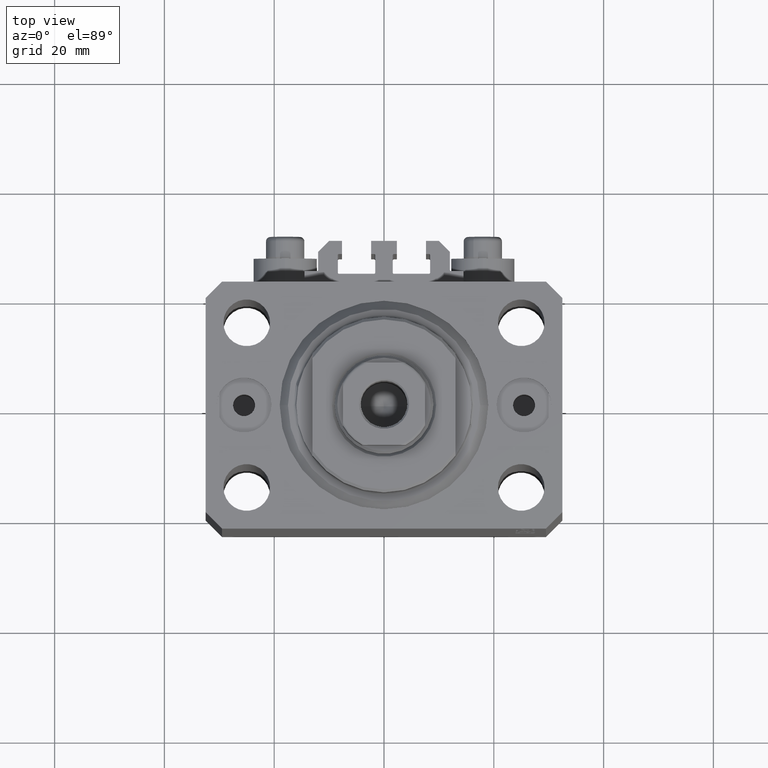
[diagram: clean part render]
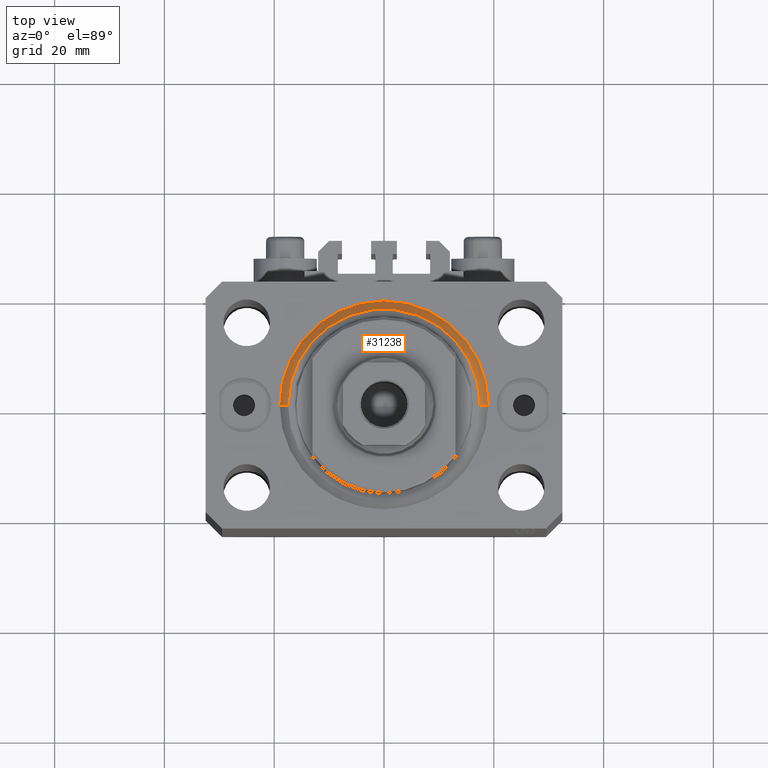
[diagram: same view with one face highlighted and labeled with its STEP entity id]
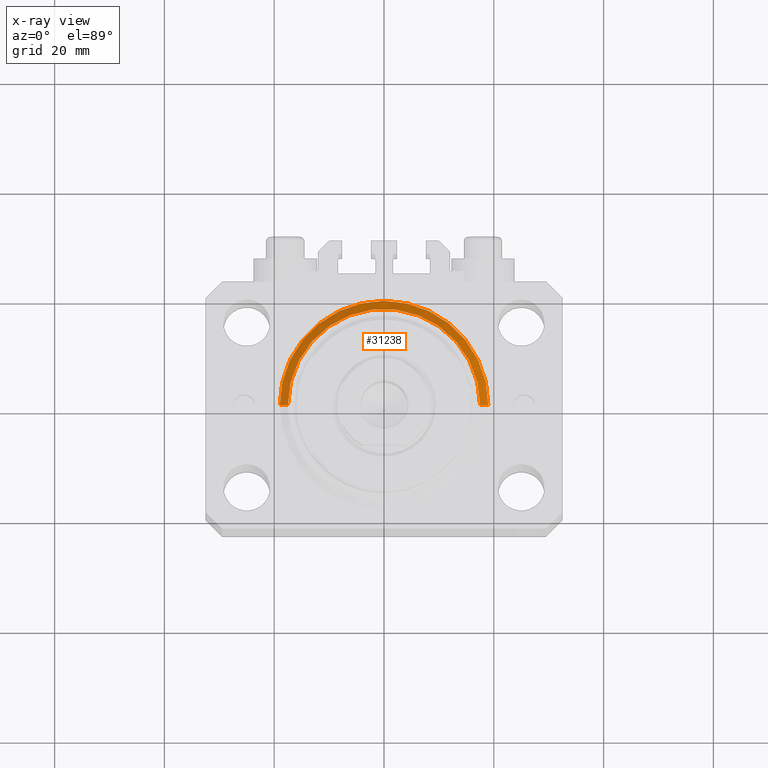
[diagram: x-ray of the same camera — body ghosted, the highlighted face saturated]
A machine part, top view. The second image highlights one B-rep face of the part: STEP entity #31238.
The next image is the same camera in x-ray: the body ghosted, the highlighted face saturated — about 0% of this face is hidden behind the body in this view.
In plain terms, the highlighted conical surface has half-angle 45 deg.
Its self-contained STEP definition (entity closure, byte-faithful):
#465 = CIRCLE ( 'NONE', #4239, 17.49999999999999289 ) ;
#950 = ORIENTED_EDGE ( 'NONE', *, *, #16775, .T. ) ;
#1694 = LINE ( 'NONE', #26553, #17993 ) ;
#1901 = CARTESIAN_POINT ( 'NONE',  ( -17.49999999999999289, 2.234980408443919215E-15, 0.000000000000000000 ) ) ;
#2150 = DIRECTION ( 'NONE',  ( -0.000000000000000000, -0.000000000000000000, -1.000000000000000000 ) ) ;
#4239 = AXIS2_PLACEMENT_3D ( 'NONE', #11556, #2150, #11786 ) ;
#5046 = DIRECTION ( 'NONE',  ( -0.7071067811865483499, 8.659560562354943952E-17, 0.7071067811865467956 ) ) ;
#5313 = FACE_OUTER_BOUND ( 'NONE', #14408, .T. ) ;
#5860 = VECTOR ( 'NONE', #8766, 1000.000000000000000 ) ;
#7488 = CONICAL_SURFACE ( 'NONE', #18181, 19.00000000000000000, 0.7853981633974492782 ) ;
#8766 = DIRECTION ( 'NONE',  ( 0.7071067811865483499, 0.000000000000000000, 0.7071067811865467956 ) ) ;
#8787 = CIRCLE ( 'NONE', #46899, 19.00000000000000000 ) ;
#11556 = CARTESIAN_POINT ( 'NONE',  ( 0.000000000000000000, 0.000000000000000000, 0.000000000000000000 ) ) ;
#11786 = DIRECTION ( 'NONE',  ( 1.000000000000000000, 0.000000000000000000, 0.000000000000000000 ) ) ;
#13434 = CARTESIAN_POINT ( 'NONE',  ( 0.000000000000000000, 0.000000000000000000, 1.500000000000004885 ) ) ;
#14408 = EDGE_LOOP ( 'NONE', ( #46742, #950, #43752, #15871 ) ) ;
#15871 = ORIENTED_EDGE ( 'NONE', *, *, #19152, .F. ) ;
#16775 = EDGE_CURVE ( 'NONE', #30429, #18710, #1694, .T. ) ;
#17993 = VECTOR ( 'NONE', #5046, 1000.000000000000000 ) ;
#18181 = AXIS2_PLACEMENT_3D ( 'NONE', #13434, #24410, #42555 ) ;
#18662 = CARTESIAN_POINT ( 'NONE',  ( 0.000000000000000000, 0.000000000000000000, 1.500000000000004885 ) ) ;
#18710 = VERTEX_POINT ( 'NONE', #24638 ) ;
#19152 = EDGE_CURVE ( 'NONE', #40791, #21344, #45530, .T. ) ;
#21344 = VERTEX_POINT ( 'NONE', #26874 ) ;
#24410 = DIRECTION ( 'NONE',  ( -0.000000000000000000, -0.000000000000000000, 1.000000000000000000 ) ) ;
#24638 = CARTESIAN_POINT ( 'NONE',  ( -19.00000000000000000, 0.000000000000000000, 1.500000000000004885 ) ) ;
#26553 = CARTESIAN_POINT ( 'NONE',  ( -19.00000000000000000, 2.326828918379970970E-15, 1.500000000000004885 ) ) ;
#26874 = CARTESIAN_POINT ( 'NONE',  ( 19.00000000000000000, 2.326828918379970970E-15, 1.500000000000004885 ) ) ;
#30429 = VERTEX_POINT ( 'NONE', #1901 ) ;
#31208 = CARTESIAN_POINT ( 'NONE',  ( 19.00000000000000000, 0.000000000000000000, 1.500000000000004885 ) ) ;
#31238 = ADVANCED_FACE ( 'NONE', ( #5313 ), #7488, .T. ) ;
#37564 = EDGE_CURVE ( 'NONE', #21344, #18710, #8787, .T. ) ;
#38601 = EDGE_CURVE ( 'NONE', #30429, #40791, #465, .T. ) ;
#40258 = CARTESIAN_POINT ( 'NONE',  ( 17.49999999999999289, 0.000000000000000000, 0.000000000000000000 ) ) ;
#40359 = DIRECTION ( 'NONE',  ( 1.000000000000000000, 0.000000000000000000, 0.000000000000000000 ) ) ;
#40791 = VERTEX_POINT ( 'NONE', #40258 ) ;
#42555 = DIRECTION ( 'NONE',  ( 1.000000000000000000, 0.000000000000000000, 0.000000000000000000 ) ) ;
#43717 = DIRECTION ( 'NONE',  ( -0.000000000000000000, -0.000000000000000000, 1.000000000000000000 ) ) ;
#43752 = ORIENTED_EDGE ( 'NONE', *, *, #37564, .F. ) ;
#45530 = LINE ( 'NONE', #31208, #5860 ) ;
#46742 = ORIENTED_EDGE ( 'NONE', *, *, #38601, .F. ) ;
#46899 = AXIS2_PLACEMENT_3D ( 'NONE', #18662, #43717, #40359 ) ;